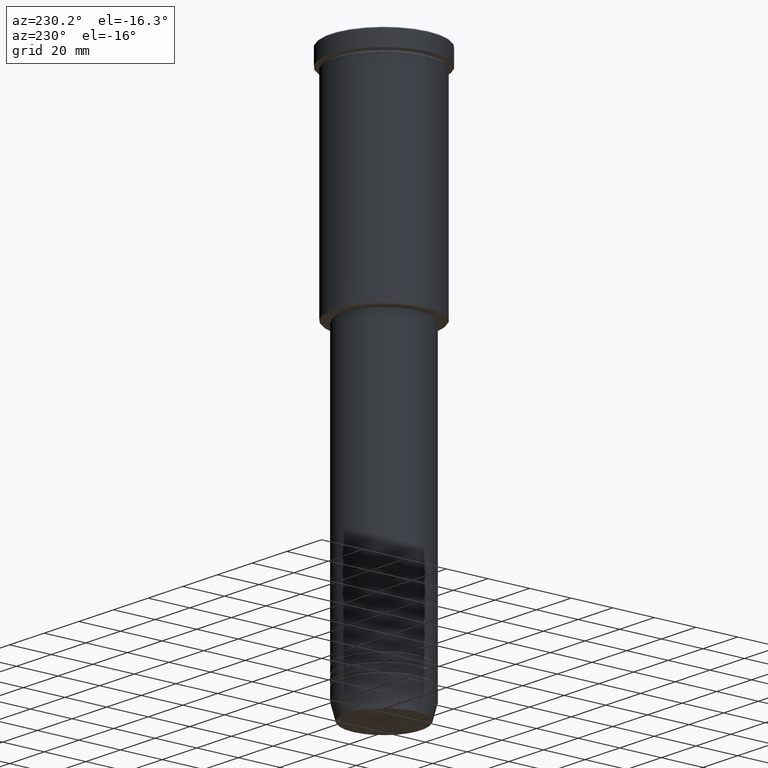
[diagram: clean part render]
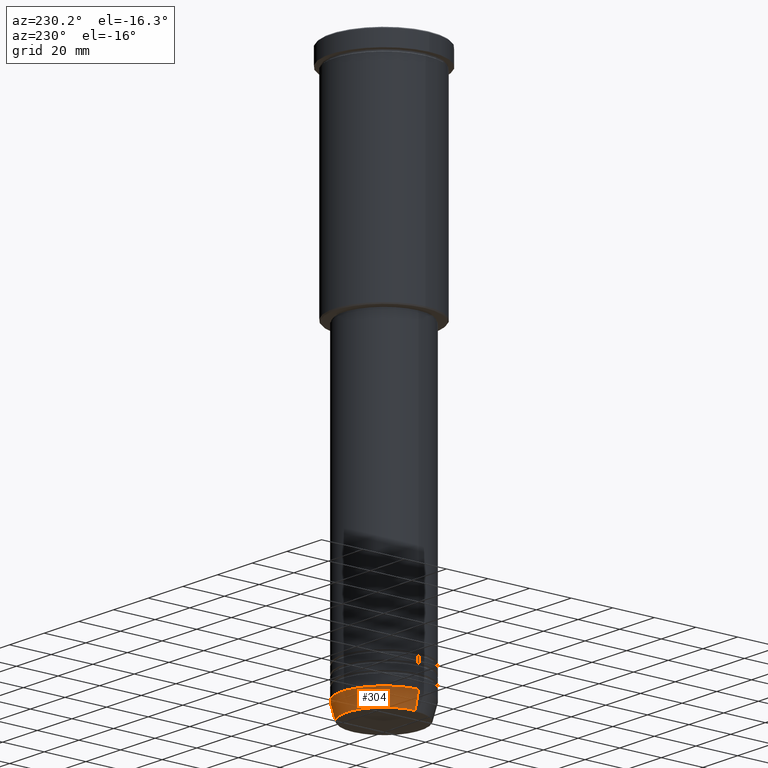
[diagram: same view with one face highlighted and labeled with its STEP entity id]
A machine part, auxiliary view. The second image highlights one B-rep face of the part: STEP entity #304.
In plain terms, the highlighted conical surface has half-angle 15 deg.
Its self-contained STEP definition (entity closure, byte-faithful):
#20 = CARTESIAN_POINT ( 'NONE',  ( -17.95570587970608045, 2.324116685748021371E-15, -259.6294095225512706 ) ) ;
#24 = AXIS2_PLACEMENT_3D ( 'NONE', #272, #634, #1000 ) ;
#52 = VERTEX_POINT ( 'NONE', #20 ) ;
#60 = DIRECTION ( 'NONE',  ( -0.2588190451025212391, 3.169619151431771721E-17, 0.9659258262890680902 ) ) ;
#155 = CONICAL_SURFACE ( 'NONE', #24, 20.00000000000000355, 0.2617993877991499629 ) ;
#198 = AXIS2_PLACEMENT_3D ( 'NONE', #764, #758, #683 ) ;
#200 = DIRECTION ( 'NONE',  ( 0.2588190451025212391, 0.000000000000000000, 0.9659258262890680902 ) ) ;
#221 = VECTOR ( 'NONE', #200, 1000.000000000000114 ) ;
#272 = CARTESIAN_POINT ( 'NONE',  ( 0.000000000000000000, 0.000000000000000000, -252.0000000000000000 ) ) ;
#288 = CARTESIAN_POINT ( 'NONE',  ( 20.00000000000000355, 0.000000000000000000, -252.0000000000000000 ) ) ;
#293 = CIRCLE ( 'NONE', #619, 17.95570587970608045 ) ;
#295 = VERTEX_POINT ( 'NONE', #626 ) ;
#304 = ADVANCED_FACE ( 'NONE', ( #630 ), #155, .T. ) ;
#308 = ORIENTED_EDGE ( 'NONE', *, *, #493, .T. ) ;
#378 = LINE ( 'NONE', #288, #221 ) ;
#430 = ORIENTED_EDGE ( 'NONE', *, *, #1118, .F. ) ;
#493 = EDGE_CURVE ( 'NONE', #52, #667, #952, .T. ) ;
#580 = CIRCLE ( 'NONE', #198, 20.00000000000000355 ) ;
#583 = EDGE_CURVE ( 'NONE', #295, #52, #293, .T. ) ;
#619 = AXIS2_PLACEMENT_3D ( 'NONE', #956, #1138, #770 ) ;
#626 = CARTESIAN_POINT ( 'NONE',  ( 17.95570587970608045, 0.000000000000000000, -259.6294095225512706 ) ) ;
#630 = FACE_OUTER_BOUND ( 'NONE', #1023, .T. ) ;
#634 = DIRECTION ( 'NONE',  ( -0.000000000000000000, -0.000000000000000000, 1.000000000000000000 ) ) ;
#664 = ORIENTED_EDGE ( 'NONE', *, *, #583, .T. ) ;
#667 = VERTEX_POINT ( 'NONE', #898 ) ;
#683 = DIRECTION ( 'NONE',  ( 1.000000000000000000, 0.000000000000000000, 0.000000000000000000 ) ) ;
#711 = ORIENTED_EDGE ( 'NONE', *, *, #1050, .F. ) ;
#758 = DIRECTION ( 'NONE',  ( -0.000000000000000000, -0.000000000000000000, 1.000000000000000000 ) ) ;
#764 = CARTESIAN_POINT ( 'NONE',  ( 0.000000000000000000, 0.000000000000000000, -252.0000000000000000 ) ) ;
#770 = DIRECTION ( 'NONE',  ( 1.000000000000000000, 0.000000000000000000, 0.000000000000000000 ) ) ;
#792 = VECTOR ( 'NONE', #60, 1000.000000000000114 ) ;
#872 = VERTEX_POINT ( 'NONE', #1176 ) ;
#898 = CARTESIAN_POINT ( 'NONE',  ( -20.00000000000000355, 2.449293598294706907E-15, -252.0000000000000000 ) ) ;
#952 = LINE ( 'NONE', #966, #792 ) ;
#956 = CARTESIAN_POINT ( 'NONE',  ( 0.000000000000000000, 0.000000000000000000, -259.6294095225512706 ) ) ;
#966 = CARTESIAN_POINT ( 'NONE',  ( -20.00000000000000355, 2.449293598294706907E-15, -252.0000000000000000 ) ) ;
#1000 = DIRECTION ( 'NONE',  ( 1.000000000000000000, 0.000000000000000000, 0.000000000000000000 ) ) ;
#1023 = EDGE_LOOP ( 'NONE', ( #664, #308, #430, #711 ) ) ;
#1050 = EDGE_CURVE ( 'NONE', #295, #872, #378, .T. ) ;
#1118 = EDGE_CURVE ( 'NONE', #872, #667, #580, .T. ) ;
#1138 = DIRECTION ( 'NONE',  ( -0.000000000000000000, -0.000000000000000000, 1.000000000000000000 ) ) ;
#1176 = CARTESIAN_POINT ( 'NONE',  ( 20.00000000000000355, 0.000000000000000000, -252.0000000000000000 ) ) ;